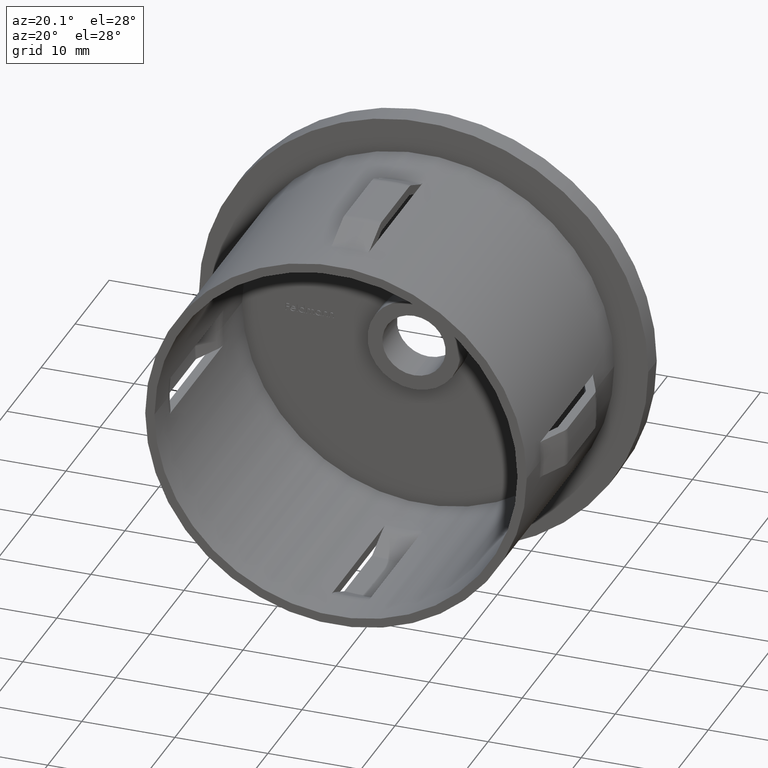
[diagram: clean part render]
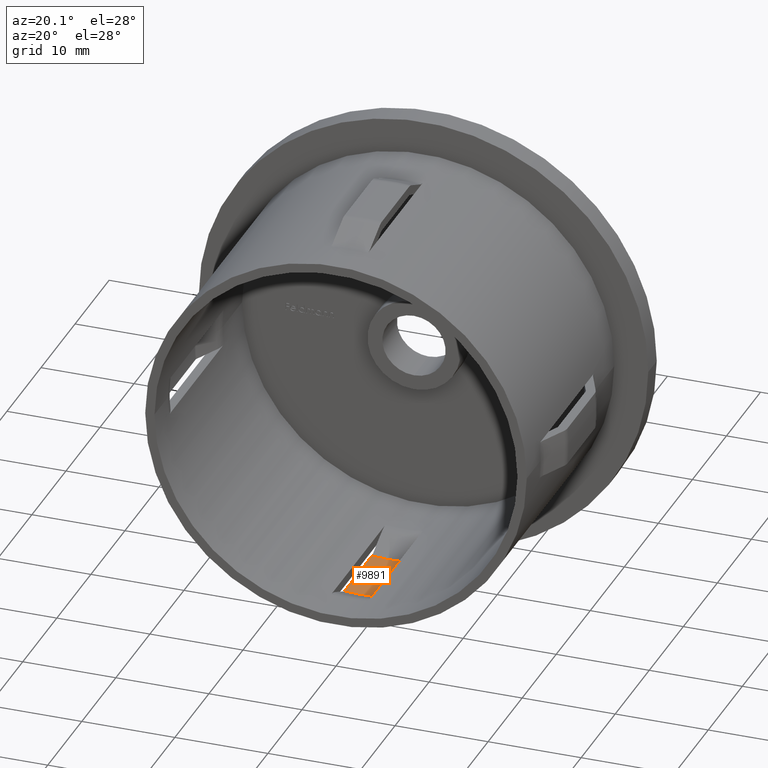
[diagram: same view with one face highlighted and labeled with its STEP entity id]
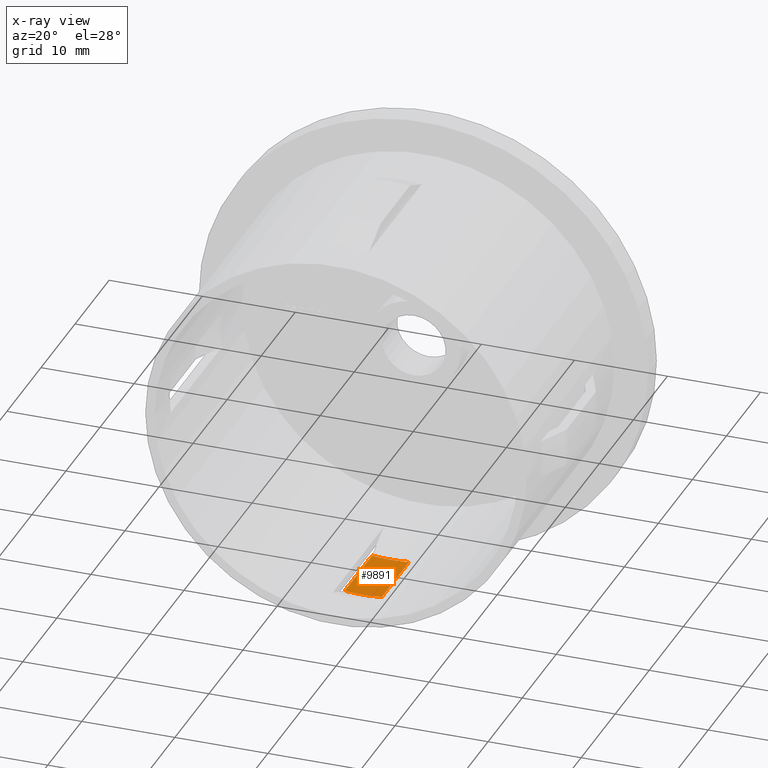
[diagram: x-ray of the same camera — body ghosted, the highlighted face saturated]
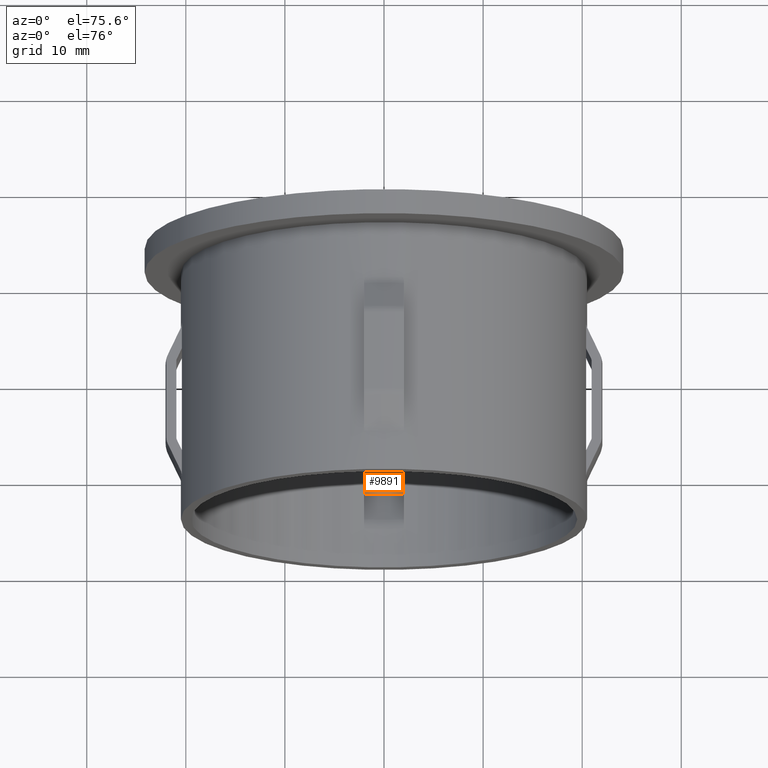
[diagram: same view with one face highlighted and labeled with its STEP entity id]
A machine part, auxiliary view. The second image highlights one B-rep face of the part: STEP entity #9891.
The next image is the same camera in x-ray: the body ghosted, the highlighted face saturated — about 0% of this face is hidden behind the body in this view.
A second angle (auxiliary view) of the same face is appended — the face is thin or edge-on in the first view.
In plain terms, the highlighted cylindrical surface (partial cylindrical patch) has radius 21.05 mm, axis along (-0, 1, -0).
Its self-contained STEP definition (entity closure, byte-faithful):
#703 = VERTEX_POINT ( 'NONE', #7780 ) ;
#1178 = LINE ( 'NONE', #6677, #14699 ) ;
#1204 = CARTESIAN_POINT ( 'NONE',  ( 1.846767373114211700E-015, 15.99999999999999600, 0.0000000000000000000 ) ) ;
#1598 = EDGE_CURVE ( 'NONE', #5251, #703, #2669, .T. ) ;
#1763 = LINE ( 'NONE', #12134, #6331 ) ;
#1965 = CIRCLE ( 'NONE', #3104, 21.05000000000000400 ) ;
#2094 = EDGE_LOOP ( 'NONE', ( #6219, #8075, #5920, #14839 ) ) ;
#2669 = CIRCLE ( 'NONE', #10939, 21.04999999999999700 ) ;
#3104 = AXIS2_PLACEMENT_3D ( 'NONE', #3614, #12505, #4889 ) ;
#3614 = CARTESIAN_POINT ( 'NONE',  ( 3.218371788159250600E-015, 7.999999999999992900, 0.0000000000000000000 ) ) ;
#3835 = DIRECTION ( 'NONE',  ( -1.000000000000000000, -1.648193326343760000E-016, 0.0000000000000000000 ) ) ;
#4188 = DIRECTION ( 'NONE',  ( -1.714505518806297100E-016, 1.000000000000000000, -0.0000000000000000000 ) ) ;
#4889 = DIRECTION ( 'NONE',  ( -1.000000000000000000, -1.648193326343759300E-016, 0.0000000000000000000 ) ) ;
#4897 = VERTEX_POINT ( 'NONE', #13084 ) ;
#4926 = CARTESIAN_POINT ( 'NONE',  ( 2.000000000000004900, 15.99999999999999600, -20.95477272604024300 ) ) ;
#4958 = FACE_OUTER_BOUND ( 'NONE', #2094, .T. ) ;
#5251 = VERTEX_POINT ( 'NONE', #4926 ) ;
#5526 = DIRECTION ( 'NONE',  ( -1.000000000000000000, -1.648193326343759800E-016, 0.0000000000000000000 ) ) ;
#5920 = ORIENTED_EDGE ( 'NONE', *, *, #1598, .T. ) ;
#5944 = CYLINDRICAL_SURFACE ( 'NONE', #14685, 21.05000000000000100 ) ;
#6219 = ORIENTED_EDGE ( 'NONE', *, *, #9310, .F. ) ;
#6324 = DIRECTION ( 'NONE',  ( -1.714505518806297100E-016, 1.000000000000000000, -0.0000000000000000000 ) ) ;
#6331 = VECTOR ( 'NONE', #14861, 1000.000000000000000 ) ;
#6677 = CARTESIAN_POINT ( 'NONE',  ( -1.999999999999996200, 28.19999999999999900, -20.95477272604024300 ) ) ;
#7300 = EDGE_CURVE ( 'NONE', #4897, #703, #1178, .T. ) ;
#7472 = VERTEX_POINT ( 'NONE', #11171 ) ;
#7780 = CARTESIAN_POINT ( 'NONE',  ( -1.999999999999996200, 15.99999999999999600, -20.95477272604024300 ) ) ;
#8075 = ORIENTED_EDGE ( 'NONE', *, *, #9131, .T. ) ;
#9131 = EDGE_CURVE ( 'NONE', #7472, #5251, #1763, .T. ) ;
#9310 = EDGE_CURVE ( 'NONE', #7472, #4897, #1965, .T. ) ;
#9891 = ADVANCED_FACE ( 'NONE', ( #4958 ), #5944, .F. ) ;
#10939 = AXIS2_PLACEMENT_3D ( 'NONE', #1204, #6324, #3835 ) ;
#11171 = CARTESIAN_POINT ( 'NONE',  ( 2.000000000000008400, 7.999999999999989300, -20.95477272604024300 ) ) ;
#12134 = CARTESIAN_POINT ( 'NONE',  ( 2.000000000000004900, 28.19999999999999900, -20.95477272604024300 ) ) ;
#12505 = DIRECTION ( 'NONE',  ( -1.714505518806297100E-016, 1.000000000000000000, -0.0000000000000000000 ) ) ;
#13084 = CARTESIAN_POINT ( 'NONE',  ( -1.999999999999992700, 7.999999999999989300, -20.95477272604024300 ) ) ;
#14427 = CARTESIAN_POINT ( 'NONE',  ( -2.449293598294708900E-016, 28.19999999999999900, 0.0000000000000000000 ) ) ;
#14685 = AXIS2_PLACEMENT_3D ( 'NONE', #14427, #4188, #5526 ) ;
#14699 = VECTOR ( 'NONE', #15632, 1000.000000000000000 ) ;
#14839 = ORIENTED_EDGE ( 'NONE', *, *, #7300, .F. ) ;
#14861 = DIRECTION ( 'NONE',  ( -1.714505518806297100E-016, 1.000000000000000000, -0.0000000000000000000 ) ) ;
#15632 = DIRECTION ( 'NONE',  ( -1.714505518806297100E-016, 1.000000000000000000, -0.0000000000000000000 ) ) ;